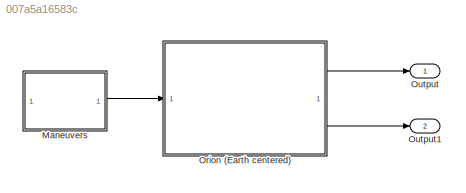
MODEL slx_007a5a16583c
KIND model
CONFIG AbsTol = auto
CONFIG EnableMultiTasking = off
CONFIG FixedStep = auto
CONFIG MaxStep = auto
CONFIG MinStep = auto
CONFIG RelTol = 1e-3
CONFIG SampleTimeConstraint = Unconstrained
CONFIG SolverName = VariableStepAuto
CONFIG StartTime = 0.0
CONFIG StopTime = 10.0
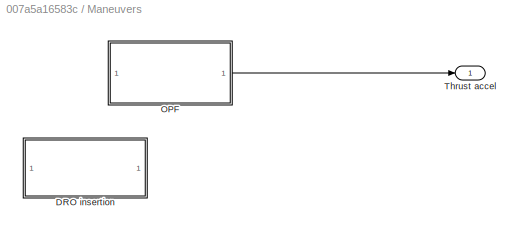
BLOCK [SubSystem] Maneuvers
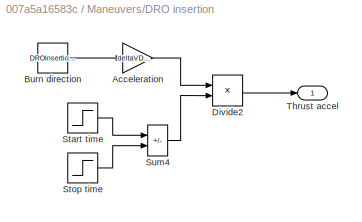
BLOCK [SubSystem] Maneuvers/DRO insertion
  Commented = on
BLOCK [Gain] Maneuvers/DRO insertion/Acceleration
  Gain = deltaVDROInsertion/burnDuration
BLOCK [Constant] Maneuvers/DRO insertion/Burn direction
  Value = DROInsertionDirection
BLOCK [Product] Maneuvers/DRO insertion/Divide2
  Inputs = **
BLOCK [Step] Maneuvers/DRO insertion/Start time
  SampleTime = 0
  Time = tDROInsertion
BLOCK [Step] Maneuvers/DRO insertion/Stop time
  SampleTime = 0
  Time = tDROInsertion+burnDuration
BLOCK [Sum] Maneuvers/DRO insertion/Sum4
  IconShape = rectangular
  Inputs = +-
BLOCK [Outport] Maneuvers/DRO insertion/Thrust accel
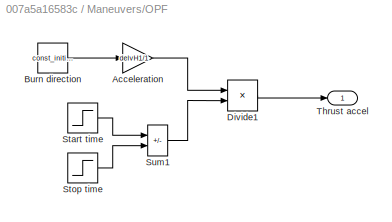
BLOCK [SubSystem] Maneuvers/OPF
BLOCK [Gain] Maneuvers/OPF/Acceleration
  Gain = delvH1/1
BLOCK [Constant] Maneuvers/OPF/Burn direction
  Value = const_initialPosition(:,2)
BLOCK [Product] Maneuvers/OPF/Divide1
  Inputs = **
BLOCK [Step] Maneuvers/OPF/Start time
  SampleTime = 0
  Time = 15060
BLOCK [Step] Maneuvers/OPF/Stop time
  SampleTime = 0
  Time = 15061
BLOCK [Sum] Maneuvers/OPF/Sum1
  IconShape = rectangular
  Inputs = +-
BLOCK [Outport] Maneuvers/OPF/Thrust accel
BLOCK [Outport] Maneuvers/Thrust accel
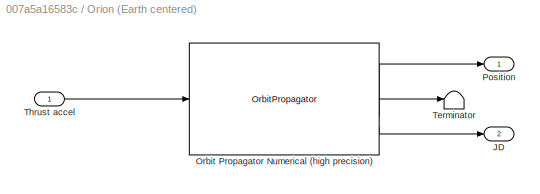
BLOCK [SubSystem] Orion (Earth centered)
BLOCK [Outport] Orion (Earth centered)/JD
  Port = 2
BLOCK [OrbitPropagator] Orion (Earth centered)/Orbit Propagator Numerical (high precision)
  accelIn = on
  action = None
  argPeriapsis = 0
  customJ2 = 1.0826269e-03
  customMu = 4.305e13
  customOmega = 4.06125949e-3
  customR = 3396200
  eccentricity = 0
  fixedPosition = [-4142689.0 -2676864.7 -4669861.6]
  fixedVelocity = [1452.7 -6720.7 2568.1]
  gravityModel = Point-mass
  inclination = 30
  inertialPosition = const_initialPosition(:,2)
  inertialVelocity = const_initialVelocity(:,2)
  propagator = Numerical (high precision)
  raan = 0
  startDate = jd
  stateFormatNum = ICRF state vector
  trueAnomaly = 0
  useEOPs = off
BLOCK [Outport] Orion (Earth centered)/Position
BLOCK [Terminator] Orion (Earth centered)/Terminator
BLOCK [Inport] Orion (Earth centered)/Thrust accel
BLOCK [Outport] Output
BLOCK [Outport] Output1
  Port = 2
LINE Maneuvers/DRO insertion/Acceleration:1 -> Maneuvers/DRO insertion/Divide2:1
LINE Maneuvers/DRO insertion/Burn direction:1 -> Maneuvers/DRO insertion/Acceleration:1
LINE Maneuvers/DRO insertion/Divide2:1 -> Maneuvers/DRO insertion/Thrust accel:1
LINE Maneuvers/DRO insertion/Start time:1 -> Maneuvers/DRO insertion/Sum4:1
LINE Maneuvers/DRO insertion/Stop time:1 -> Maneuvers/DRO insertion/Sum4:2
LINE Maneuvers/DRO insertion/Sum4:1 -> Maneuvers/DRO insertion/Divide2:2
LINE Maneuvers/OPF/Acceleration:1 -> Maneuvers/OPF/Divide1:1
LINE Maneuvers/OPF/Burn direction:1 -> Maneuvers/OPF/Acceleration:1
LINE Maneuvers/OPF/Divide1:1 -> Maneuvers/OPF/Thrust accel:1
LINE Maneuvers/OPF/Start time:1 -> Maneuvers/OPF/Sum1:1
LINE Maneuvers/OPF/Stop time:1 -> Maneuvers/OPF/Sum1:2
LINE Maneuvers/OPF/Sum1:1 -> Maneuvers/OPF/Divide1:2
LINE Maneuvers/OPF:1 -> Maneuvers/Thrust accel:1
LINE Maneuvers:1 -> Orion (Earth centered):1
LINE Orion (Earth centered)/Orbit Propagator Numerical (high precision):1 -> Orion (Earth centered)/Position:1
LINE Orion (Earth centered)/Orbit Propagator Numerical (high precision):2 -> Orion (Earth centered)/Terminator:1
LINE Orion (Earth centered)/Orbit Propagator Numerical (high precision):3 -> Orion (Earth centered)/JD:1
LINE Orion (Earth centered)/Thrust accel:1 -> Orion (Earth centered)/Orbit Propagator Numerical (high precision):1
LINE Orion (Earth centered):1 -> Output:1
LINE Orion (Earth centered):2 -> Output1:1
